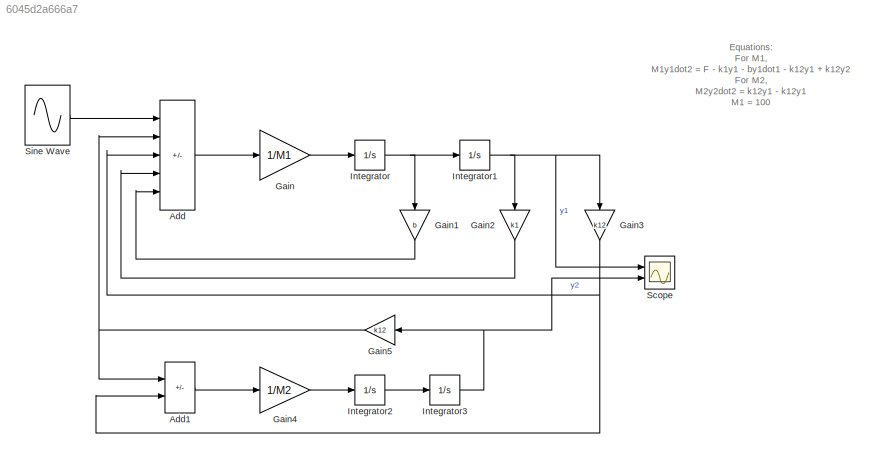
MODEL slx_6045d2a666a7
KIND model
CONFIG AbsTol = auto
CONFIG EnableMultiTasking = off
CONFIG FixedStep = auto
CONFIG MaxStep = auto
CONFIG MinStep = auto
CONFIG RelTol = 1e-3
CONFIG SampleTimeConstraint = Unconstrained
CONFIG SolverName = VariableStepAuto
CONFIG StartTime = 0.0
CONFIG StopTime = 100
BLOCK [Sum] Add
  IconShape = rectangular
  Inputs = ++---
  Ports = [5, 1]
BLOCK [Sum] Add1
  IconShape = rectangular
  Inputs = -+
  Ports = [2, 1]
BLOCK [Gain] Gain
  Gain = 1/M1
BLOCK [Gain] Gain1
  Gain = b
  NameLocation = left
BLOCK [Gain] Gain2
  Gain = k1
  NameLocation = left
BLOCK [Gain] Gain3
  Gain = k12
  NameLocation = left
BLOCK [Gain] Gain4
  Gain = 1/M2
BLOCK [Gain] Gain5
  Gain = k12
  NameLocation = top
BLOCK [Integrator] Integrator
  Ports = [1, 1]
BLOCK [Integrator] Integrator1
  Ports = [1, 1]
BLOCK [Integrator] Integrator2
  Ports = [1, 1]
BLOCK [Integrator] Integrator3
  Ports = [1, 1]
BLOCK [Scope] Scope
  Floating = off
  NumInputPorts = 2
  Ports = [2]
  ScopeSpecificationString = Simulink.scopes.TimeScopeBlockCfg('CurrentConfiguration', extmgr.ConfigurationSet(extmgr.Configuration('Core','General UI',true),extmgr.Configuration('Core','Source UI',true),extmgr.Configuration('Sources','WiredSimulink',true),extmgr.Configuration('Visuals','Time Domain',true,'SerializedDisplays',{struct('MinYLimReal','-0.00121','MaxYLimReal','0.00191','YLabelReal','','MinYLimMag','0.00000','MaxY...<+1989ch>
BLOCK [Sin] Sine Wave
  Amplitude = 2
  Frequency = 10
  Ports = [0, 1]
  SampleTime = 0
ANNOTATION (root): Equations: For M1, M1y1dot2 = F - k1y1 - by1dot1 - k12y1 + k12y2 For M2, M2y2dot2 = k12y1 - k12y1 M1 = 100 K1 = 50 b = 50 M2 = 10 K12 = 1000
LINE Add1:1 -> Gain4:1
LINE Add:1 -> Gain:1
LINE Gain1:1 -> Add:5
LINE Gain2:1 -> Add:4
NET Gain3:1 -> Add1:2, Add:3
LINE Gain4:1 -> Integrator2:1
NET Gain5:1 -> Add1:1, Add:2
LINE Gain:1 -> Integrator:1
NET Integrator1:1 -> Gain2:1, Gain3:1, Scope:1
LINE Integrator2:1 -> Integrator3:1
NET Integrator3:1 -> Gain5:1, Scope:2
NET Integrator:1 -> Gain1:1, Integrator1:1
LINE Sine Wave:1 -> Add:1
note: NET lines group one-source signal fan-out (src -> all destinations, sorted); 1:1 wires keep LINE
